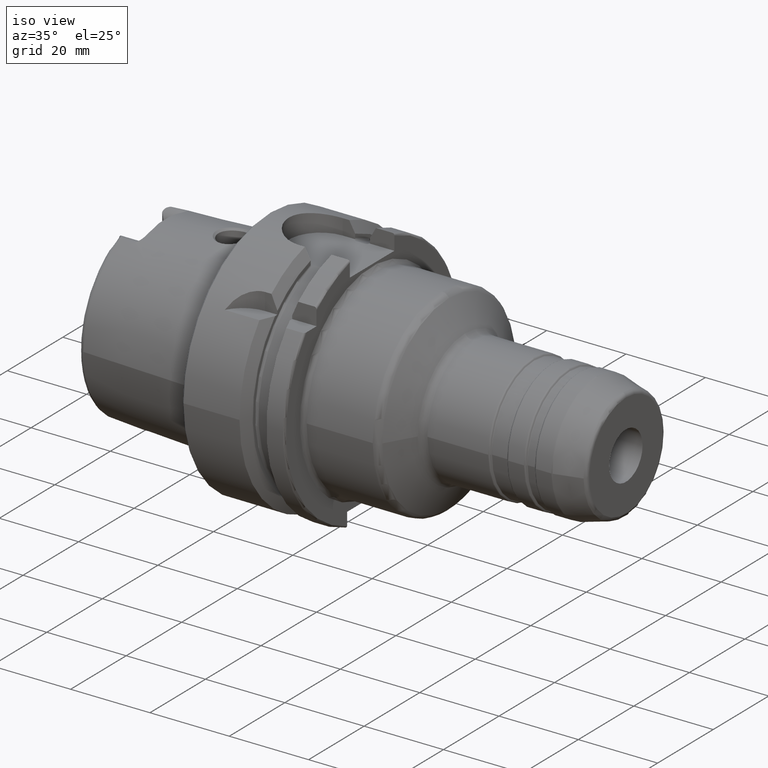
[diagram: clean part render]
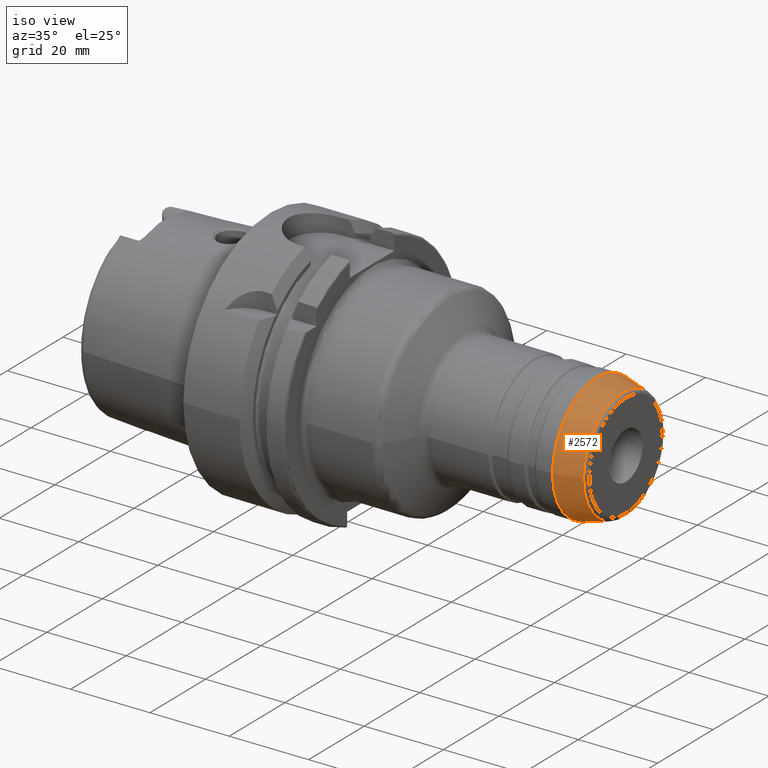
[diagram: same view with one face highlighted and labeled with its STEP entity id]
A machine part, iso view. The second image highlights one B-rep face of the part: STEP entity #2572.
In plain terms, the highlighted conical surface has half-angle 15 deg.
Its self-contained STEP definition (entity closure, byte-faithful):
#186=CONICAL_SURFACE('',#2773,15.,0.261799387799149);
#218=FACE_OUTER_BOUND('',#357,.T.);
#357=EDGE_LOOP('',(#1767,#1768,#1769,#1770,#1771,#1772,#1773,#1774));
#502=LINE('',#4069,#619);
#619=VECTOR('',#3221,15.);
#762=CIRCLE('',#2769,14.1985988383101);
#763=CIRCLE('',#2770,14.1985988383101);
#764=CIRCLE('',#2771,14.1985988383101);
#766=CIRCLE('',#2774,15.9659258262891);
#767=CIRCLE('',#2775,15.9659258262891);
#768=CIRCLE('',#2776,15.9659258262891);
#995=VERTEX_POINT('',#4059);
#996=VERTEX_POINT('',#4061);
#997=VERTEX_POINT('',#4063);
#998=VERTEX_POINT('',#4068);
#999=VERTEX_POINT('',#4070);
#1000=VERTEX_POINT('',#4072);
#1301=EDGE_CURVE('',#995,#996,#762,.T.);
#1302=EDGE_CURVE('',#996,#997,#763,.T.);
#1303=EDGE_CURVE('',#997,#995,#764,.T.);
#1305=EDGE_CURVE('',#996,#998,#502,.T.);
#1306=EDGE_CURVE('',#999,#998,#766,.T.);
#1307=EDGE_CURVE('',#1000,#999,#767,.T.);
#1308=EDGE_CURVE('',#998,#1000,#768,.T.);
#1767=ORIENTED_EDGE('',*,*,#1303,.F.);
#1768=ORIENTED_EDGE('',*,*,#1302,.F.);
#1769=ORIENTED_EDGE('',*,*,#1305,.T.);
#1770=ORIENTED_EDGE('',*,*,#1306,.F.);
#1771=ORIENTED_EDGE('',*,*,#1307,.F.);
#1772=ORIENTED_EDGE('',*,*,#1308,.F.);
#1773=ORIENTED_EDGE('',*,*,#1305,.F.);
#1774=ORIENTED_EDGE('',*,*,#1301,.F.);
#2572=ADVANCED_FACE('',(#218),#186,.T.);
#2769=AXIS2_PLACEMENT_3D('',#4062,#3211,#3212);
#2770=AXIS2_PLACEMENT_3D('',#4064,#3213,#3214);
#2771=AXIS2_PLACEMENT_3D('',#4065,#3215,#3216);
#2773=AXIS2_PLACEMENT_3D('',#4067,#3219,#3220);
#2774=AXIS2_PLACEMENT_3D('',#4071,#3222,#3223);
#2775=AXIS2_PLACEMENT_3D('',#4073,#3224,#3225);
#2776=AXIS2_PLACEMENT_3D('',#4074,#3226,#3227);
#3211=DIRECTION('center_axis',(1.,0.,0.));
#3212=DIRECTION('ref_axis',(0.,-1.,3.06161699786838E-17));
#3213=DIRECTION('center_axis',(1.,0.,0.));
#3214=DIRECTION('ref_axis',(0.,-1.,3.06161699786838E-17));
#3215=DIRECTION('center_axis',(1.,0.,0.));
#3216=DIRECTION('ref_axis',(0.,-1.,3.06161699786838E-17));
#3219=DIRECTION('center_axis',(-1.,0.,0.));
#3220=DIRECTION('ref_axis',(0.,1.,0.));
#3221=DIRECTION('',(-0.965925826289068,-0.25881904510252,-3.16961915143176E-17));
#3222=DIRECTION('center_axis',(-1.,0.,0.));
#3223=DIRECTION('ref_axis',(0.,-1.,3.06161699786838E-17));
#3224=DIRECTION('center_axis',(-1.,0.,0.));
#3225=DIRECTION('ref_axis',(0.,-1.,3.06161699786838E-17));
#3226=DIRECTION('center_axis',(-1.,0.,0.));
#3227=DIRECTION('ref_axis',(0.,-1.,3.06161699786838E-17));
#4059=CARTESIAN_POINT('',(89.2588190451025,-1.73882686197138E-15,14.1985988383101));
#4061=CARTESIAN_POINT('',(89.2588190451025,-14.1985988383101,-1.73882686197138E-15));
#4062=CARTESIAN_POINT('Origin',(89.2588190451025,0.,-2.17353357746422E-15));
#4063=CARTESIAN_POINT('',(89.2588190451025,14.1985988383101,-8.6941343098569E-16));
#4064=CARTESIAN_POINT('Origin',(89.2588190451025,0.,-2.17353357746422E-15));
#4065=CARTESIAN_POINT('Origin',(89.2588190451025,0.,-2.17353357746422E-15));
#4067=CARTESIAN_POINT('Origin',(86.2679491924311,0.,0.));
#4068=CARTESIAN_POINT('',(82.6630649323773,-15.9659258262891,-1.9552619958589E-15));
#4069=CARTESIAN_POINT('',(86.2679491924311,-15.,-1.83697019872103E-15));
#4070=CARTESIAN_POINT('',(82.6630649323773,15.9659258262891,-4.88815498964724E-15));
#4071=CARTESIAN_POINT('Origin',(82.6630649323773,0.,-2.44407749482362E-15));
#4072=CARTESIAN_POINT('',(82.6630649323773,-1.9552619958589E-15,15.9659258262891));
#4073=CARTESIAN_POINT('Origin',(82.6630649323773,0.,-2.44407749482362E-15));
#4074=CARTESIAN_POINT('Origin',(82.6630649323773,0.,-2.44407749482362E-15));